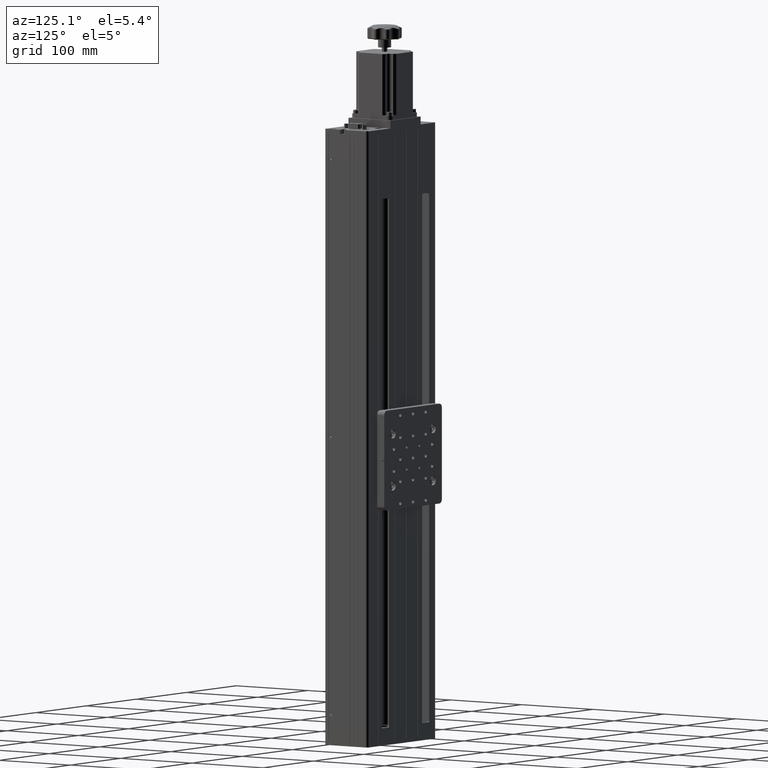
[diagram: clean part render]
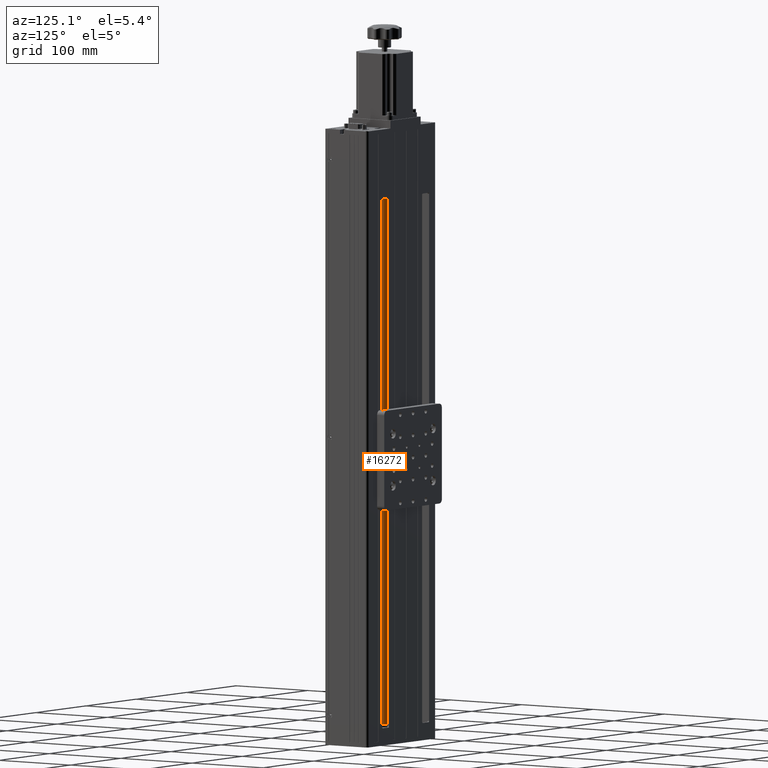
[diagram: same view with one face highlighted and labeled with its STEP entity id]
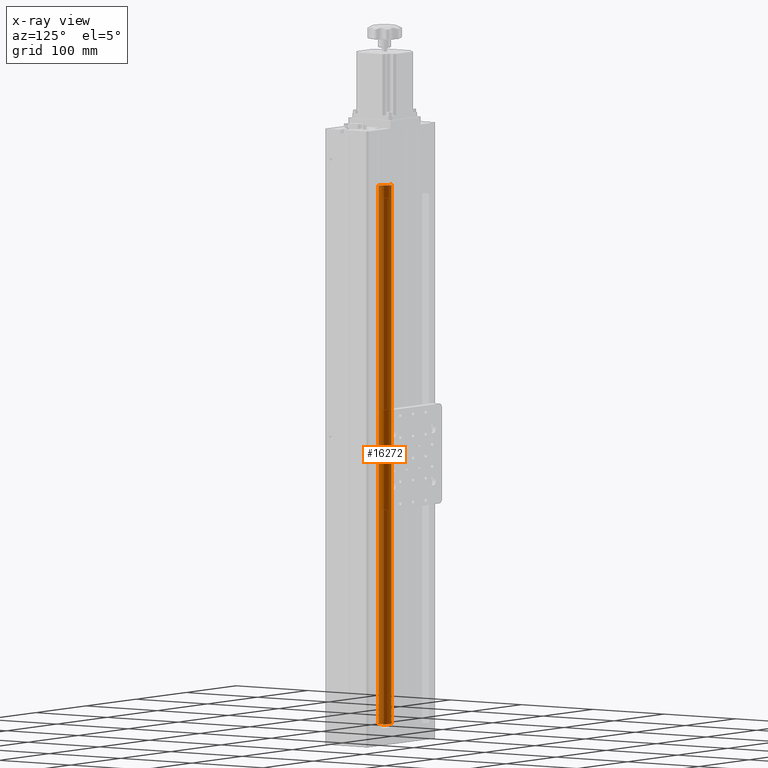
[diagram: x-ray of the same camera — body ghosted, the highlighted face saturated]
A machine part, auxiliary view. The second image highlights one B-rep face of the part: STEP entity #16272.
The next image is the same camera in x-ray: the body ghosted, the highlighted face saturated — about 0% of this face is hidden behind the body in this view.
In plain terms, the highlighted cylindrical surface (edge-blend (fillet) strip) has radius 8 mm, axis along (0, 0, -1).
Its self-contained STEP definition (entity closure, byte-faithful):
#152 = CARTESIAN_POINT ( 'NONE',  ( -136.2356926832512400, 4.329873603685406600, 37.16573236672326900 ) ) ;
#735 = VERTEX_POINT ( 'NONE', #20552 ) ;
#994 = ORIENTED_EDGE ( 'NONE', *, *, #8627, .T. ) ;
#3392 = DIRECTION ( 'NONE',  ( -0.9063340040796635800, 0.4225620345569683400, 0.0000000000000000000 ) ) ;
#3394 = CARTESIAN_POINT ( 'NONE',  ( -143.4863647158885800, 7.710369880141147500, -583.8342676332766800 ) ) ;
#3436 = VECTOR ( 'NONE', #22142, 1000.000000000000000 ) ;
#3541 = EDGE_CURVE ( 'NONE', #11409, #34838, #8200, .T. ) ;
#8200 = LINE ( 'NONE', #31127, #24217 ) ;
#8627 = EDGE_CURVE ( 'NONE', #14586, #735, #12957, .T. ) ;
#9619 = CIRCLE ( 'NONE', #18051, 8.000000000000010700 ) ;
#11317 = ORIENTED_EDGE ( 'NONE', *, *, #3541, .F. ) ;
#11409 = VERTEX_POINT ( 'NONE', #32595 ) ;
#12957 = LINE ( 'NONE', #15716, #3436 ) ;
#13120 = ORIENTED_EDGE ( 'NONE', *, *, #21477, .T. ) ;
#13938 = DIRECTION ( 'NONE',  ( 0.0000000000000000000, 0.0000000000000000000, -1.000000000000000000 ) ) ;
#14269 = EDGE_CURVE ( 'NONE', #34838, #735, #9619, .T. ) ;
#14289 = CARTESIAN_POINT ( 'NONE',  ( -136.2356926832512400, 4.329873603685406600, -583.8342676332766800 ) ) ;
#14584 = DIRECTION ( 'NONE',  ( 0.0000000000000000000, 0.0000000000000000000, -1.000000000000000000 ) ) ;
#14586 = VERTEX_POINT ( 'NONE', #25590 ) ;
#14771 = EDGE_LOOP ( 'NONE', ( #13120, #994, #18774, #11317 ) ) ;
#14899 = AXIS2_PLACEMENT_3D ( 'NONE', #36995, #14584, #33880 ) ;
#15509 = DIRECTION ( 'NONE',  ( -0.9063340040796641400, 0.4225620345569670000, 0.0000000000000000000 ) ) ;
#15716 = CARTESIAN_POINT ( 'NONE',  ( -128.9850206506139300, 0.9493773272296669500, -596.8342676332768000 ) ) ;
#16272 = ADVANCED_FACE ( 'NONE', ( #37015 ), #24470, .T. ) ;
#18051 = AXIS2_PLACEMENT_3D ( 'NONE', #14289, #13938, #15509 ) ;
#18774 = ORIENTED_EDGE ( 'NONE', *, *, #14269, .F. ) ;
#20552 = CARTESIAN_POINT ( 'NONE',  ( -128.9850206506139300, 0.9493773272296712800, -583.8342676332766800 ) ) ;
#21477 = EDGE_CURVE ( 'NONE', #11409, #14586, #36660, .T. ) ;
#22142 = DIRECTION ( 'NONE',  ( 0.0000000000000000000, 0.0000000000000000000, -1.000000000000000000 ) ) ;
#22539 = DIRECTION ( 'NONE',  ( 0.0000000000000000000, 0.0000000000000000000, -1.000000000000000000 ) ) ;
#24217 = VECTOR ( 'NONE', #31554, 1000.000000000000000 ) ;
#24470 = CYLINDRICAL_SURFACE ( 'NONE', #14899, 8.000000000000010700 ) ;
#25590 = CARTESIAN_POINT ( 'NONE',  ( -128.9850206506139300, 0.9493773272296721600, 37.16573236672326900 ) ) ;
#31127 = CARTESIAN_POINT ( 'NONE',  ( -143.4863647158885800, 7.710369880141147500, -596.8342676332768000 ) ) ;
#31554 = DIRECTION ( 'NONE',  ( 0.0000000000000000000, 0.0000000000000000000, -1.000000000000000000 ) ) ;
#32595 = CARTESIAN_POINT ( 'NONE',  ( -143.4863647158885600, 7.710369880141147500, 37.16573236672326900 ) ) ;
#33880 = DIRECTION ( 'NONE',  ( -0.9063340040796641400, 0.4225620345569670000, 0.0000000000000000000 ) ) ;
#34601 = AXIS2_PLACEMENT_3D ( 'NONE', #152, #22539, #3392 ) ;
#34838 = VERTEX_POINT ( 'NONE', #3394 ) ;
#36660 = CIRCLE ( 'NONE', #34601, 7.999999999999985800 ) ;
#36995 = CARTESIAN_POINT ( 'NONE',  ( -136.2356926832512400, 4.329873603685406600, -596.8342676332768000 ) ) ;
#37015 = FACE_OUTER_BOUND ( 'NONE', #14771, .T. ) ;